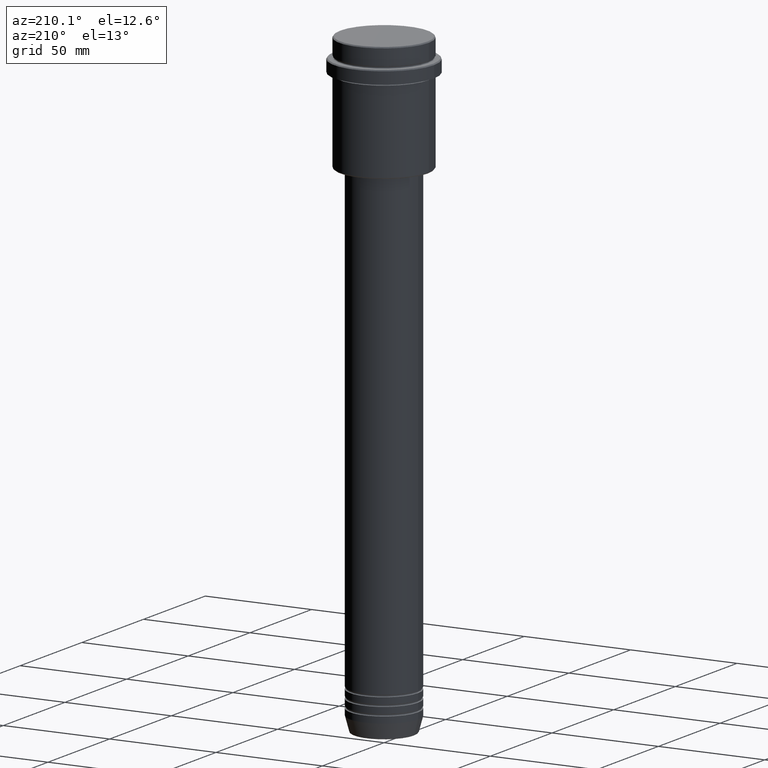
[diagram: clean part render]
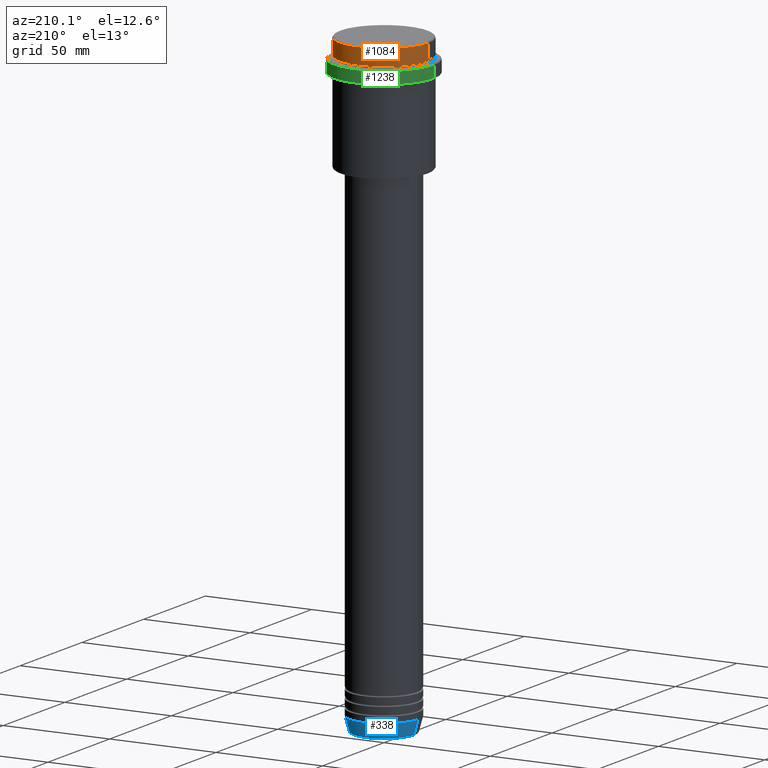
[diagram: same view with three faces highlighted in distinct colors, each labeled with its STEP entity id]
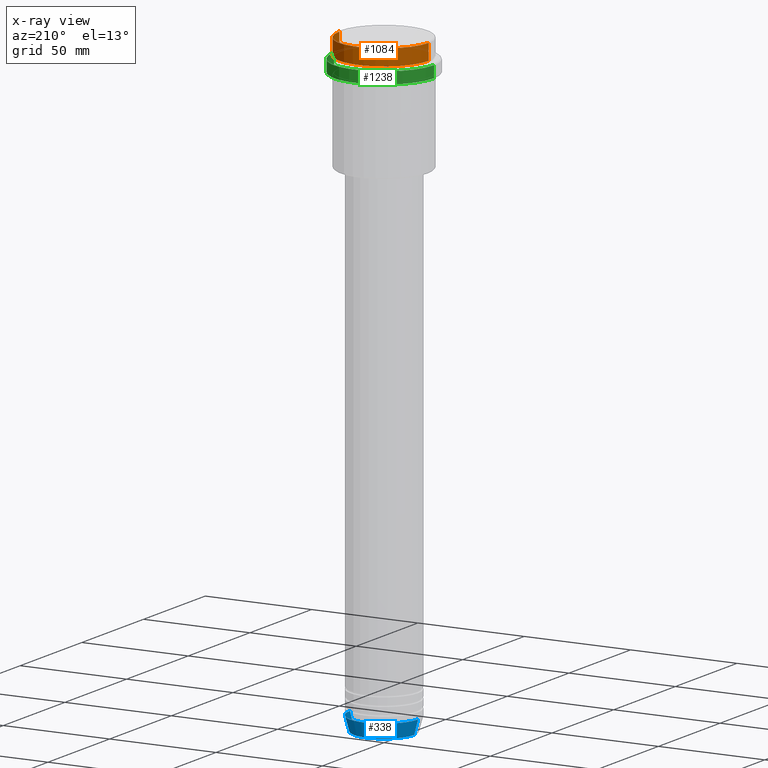
[diagram: x-ray of the same camera — body ghosted, the three highlighted faces saturated]
A machine part, auxiliary view with three faces highlighted in distinct colors.
The next image is the same camera in x-ray (body ghosted, the three faces saturated) — at least one of them is partly hidden behind the body in this view.
Their STEP definitions:

[orange] entity #1084 — the highlighted cylindrical surface (partial cylindrical patch) has radius 21 mm, axis along (-0, -0, 1).
#62 = EDGE_CURVE ( 'NONE', #1328, #158, #279, .T. ) ;
#65 = FACE_OUTER_BOUND ( 'NONE', #515, .T. ) ;
#149 = DIRECTION ( 'NONE',  ( 1.000000000000000000, 0.000000000000000000, 0.000000000000000000 ) ) ;
#153 = ORIENTED_EDGE ( 'NONE', *, *, #211, .F. ) ;
#158 = VERTEX_POINT ( 'NONE', #939 ) ;
#211 = EDGE_CURVE ( 'NONE', #996, #158, #379, .T. ) ;
#248 = DIRECTION ( 'NONE',  ( -0.000000000000000000, -0.000000000000000000, 1.000000000000000000 ) ) ;
#253 = DIRECTION ( 'NONE',  ( 0.000000000000000000, 0.000000000000000000, -1.000000000000000000 ) ) ;
#256 = AXIS2_PLACEMENT_3D ( 'NONE', #757, #875, #1298 ) ;
#272 = DIRECTION ( 'NONE',  ( -0.000000000000000000, -0.000000000000000000, 1.000000000000000000 ) ) ;
#279 = CIRCLE ( 'NONE', #459, 20.99999999999999645 ) ;
#288 = DIRECTION ( 'NONE',  ( 1.000000000000000000, 0.000000000000000000, 0.000000000000000000 ) ) ;
#312 = ORIENTED_EDGE ( 'NONE', *, *, #594, .T. ) ;
#374 = EDGE_CURVE ( 'NONE', #882, #1328, #811, .T. ) ;
#379 = LINE ( 'NONE', #816, #615 ) ;
#459 = AXIS2_PLACEMENT_3D ( 'NONE', #936, #253, #149 ) ;
#510 = CYLINDRICAL_SURFACE ( 'NONE', #1179, 20.99999999999999645 ) ;
#515 = EDGE_LOOP ( 'NONE', ( #312, #612, #700, #153 ) ) ;
#594 = EDGE_CURVE ( 'NONE', #996, #882, #617, .T. ) ;
#612 = ORIENTED_EDGE ( 'NONE', *, *, #374, .T. ) ;
#615 = VECTOR ( 'NONE', #272, 1000.000000000000000 ) ;
#616 = CARTESIAN_POINT ( 'NONE',  ( -20.99999999999999645, 2.571758278209441267E-15, -7.999999999999998224 ) ) ;
#617 = CIRCLE ( 'NONE', #256, 20.99999999999999645 ) ;
#700 = ORIENTED_EDGE ( 'NONE', *, *, #62, .T. ) ;
#757 = CARTESIAN_POINT ( 'NONE',  ( 0.000000000000000000, 0.000000000000000000, -7.999999999999998224 ) ) ;
#791 = CARTESIAN_POINT ( 'NONE',  ( -20.99999999999999645, 2.571758278209441267E-15, 0.000000000000000000 ) ) ;
#811 = LINE ( 'NONE', #791, #869 ) ;
#816 = CARTESIAN_POINT ( 'NONE',  ( 20.99999999999999645, 0.000000000000000000, 0.000000000000000000 ) ) ;
#869 = VECTOR ( 'NONE', #248, 1000.000000000000000 ) ;
#875 = DIRECTION ( 'NONE',  ( -0.000000000000000000, -0.000000000000000000, 1.000000000000000000 ) ) ;
#882 = VERTEX_POINT ( 'NONE', #616 ) ;
#927 = DIRECTION ( 'NONE',  ( -0.000000000000000000, -0.000000000000000000, 1.000000000000000000 ) ) ;
#936 = CARTESIAN_POINT ( 'NONE',  ( 0.000000000000000000, 0.000000000000000000, -0.5000000000000905942 ) ) ;
#939 = CARTESIAN_POINT ( 'NONE',  ( 20.99999999999999645, 0.000000000000000000, -0.5000000000000905942 ) ) ;
#973 = CARTESIAN_POINT ( 'NONE',  ( 20.99999999999999645, 0.000000000000000000, -7.999999999999998224 ) ) ;
#996 = VERTEX_POINT ( 'NONE', #973 ) ;
#1043 = CARTESIAN_POINT ( 'NONE',  ( -20.99999999999999645, 2.571758278209441267E-15, -0.5000000000000905942 ) ) ;
#1084 = ADVANCED_FACE ( 'NONE', ( #65 ), #510, .T. ) ;
#1133 = CARTESIAN_POINT ( 'NONE',  ( 0.000000000000000000, 0.000000000000000000, 0.000000000000000000 ) ) ;
#1179 = AXIS2_PLACEMENT_3D ( 'NONE', #1133, #927, #288 ) ;
#1298 = DIRECTION ( 'NONE',  ( 1.000000000000000000, 0.000000000000000000, 0.000000000000000000 ) ) ;
#1328 = VERTEX_POINT ( 'NONE', #1043 ) ;

[blue] entity #338 — the highlighted conical surface has half-angle 15 deg.
#7 = EDGE_CURVE ( 'NONE', #904, #978, #1002, .T. ) ;
#57 = DIRECTION ( 'NONE',  ( -0.2588190451025213501, 3.169619151431772337E-17, 0.9659258262890680902 ) ) ;
#80 = CARTESIAN_POINT ( 'NONE',  ( -16.00000000000000000, 1.959434878635765131E-15, -283.0000000000000000 ) ) ;
#100 = DIRECTION ( 'NONE',  ( -0.000000000000000000, -0.000000000000000000, 1.000000000000000000 ) ) ;
#140 = CIRCLE ( 'NONE', #1217, 16.00000000000000000 ) ;
#170 = ORIENTED_EDGE ( 'NONE', *, *, #1163, .T. ) ;
#197 = CARTESIAN_POINT ( 'NONE',  ( 14.22365507213718772, 0.000000000000000000, -289.6294095225512137 ) ) ;
#208 = DIRECTION ( 'NONE',  ( -0.000000000000000000, -0.000000000000000000, 1.000000000000000000 ) ) ;
#212 = CARTESIAN_POINT ( 'NONE',  ( 0.000000000000000000, 0.000000000000000000, -283.0000000000000000 ) ) ;
#225 = CARTESIAN_POINT ( 'NONE',  ( 0.000000000000000000, 0.000000000000000000, -289.6294095225512137 ) ) ;
#263 = CARTESIAN_POINT ( 'NONE',  ( -16.00000000000000000, 1.959434878635765131E-15, -283.0000000000000000 ) ) ;
#303 = AXIS2_PLACEMENT_3D ( 'NONE', #975, #425, #864 ) ;
#337 = CARTESIAN_POINT ( 'NONE',  ( -14.22365507213718772, 1.850665122131323337E-15, -289.6294095225512137 ) ) ;
#338 = ADVANCED_FACE ( 'NONE', ( #635 ), #917, .T. ) ;
#390 = VECTOR ( 'NONE', #57, 1000.000000000000000 ) ;
#425 = DIRECTION ( 'NONE',  ( -0.000000000000000000, -0.000000000000000000, 1.000000000000000000 ) ) ;
#462 = ORIENTED_EDGE ( 'NONE', *, *, #577, .F. ) ;
#577 = EDGE_CURVE ( 'NONE', #904, #698, #1063, .T. ) ;
#598 = LINE ( 'NONE', #263, #390 ) ;
#600 = VECTOR ( 'NONE', #953, 1000.000000000000000 ) ;
#635 = FACE_OUTER_BOUND ( 'NONE', #809, .T. ) ;
#657 = DIRECTION ( 'NONE',  ( 1.000000000000000000, 0.000000000000000000, 0.000000000000000000 ) ) ;
#698 = VERTEX_POINT ( 'NONE', #842 ) ;
#717 = CARTESIAN_POINT ( 'NONE',  ( 16.00000000000000000, 0.000000000000000000, -283.0000000000000000 ) ) ;
#809 = EDGE_LOOP ( 'NONE', ( #843, #170, #1013, #462 ) ) ;
#842 = CARTESIAN_POINT ( 'NONE',  ( 16.00000000000000000, 0.000000000000000000, -283.0000000000000000 ) ) ;
#843 = ORIENTED_EDGE ( 'NONE', *, *, #7, .T. ) ;
#864 = DIRECTION ( 'NONE',  ( 1.000000000000000000, 0.000000000000000000, 0.000000000000000000 ) ) ;
#904 = VERTEX_POINT ( 'NONE', #197 ) ;
#917 = CONICAL_SURFACE ( 'NONE', #303, 16.00000000000000000, 0.2617993877991500740 ) ;
#953 = DIRECTION ( 'NONE',  ( 0.2588190451025213501, 0.000000000000000000, 0.9659258262890680902 ) ) ;
#956 = EDGE_CURVE ( 'NONE', #698, #1271, #140, .T. ) ;
#975 = CARTESIAN_POINT ( 'NONE',  ( 0.000000000000000000, 0.000000000000000000, -283.0000000000000000 ) ) ;
#978 = VERTEX_POINT ( 'NONE', #337 ) ;
#1002 = CIRCLE ( 'NONE', #1212, 14.22365507213718772 ) ;
#1013 = ORIENTED_EDGE ( 'NONE', *, *, #956, .F. ) ;
#1063 = LINE ( 'NONE', #717, #600 ) ;
#1070 = DIRECTION ( 'NONE',  ( 1.000000000000000000, 0.000000000000000000, 0.000000000000000000 ) ) ;
#1163 = EDGE_CURVE ( 'NONE', #978, #1271, #598, .T. ) ;
#1212 = AXIS2_PLACEMENT_3D ( 'NONE', #225, #208, #1070 ) ;
#1217 = AXIS2_PLACEMENT_3D ( 'NONE', #212, #100, #657 ) ;
#1271 = VERTEX_POINT ( 'NONE', #80 ) ;

[green] entity #1238 — the highlighted cylindrical surface (partial cylindrical patch) has radius 23.5 mm, axis along (-0, -0, 1).
#41 = DIRECTION ( 'NONE',  ( -0.000000000000000000, -0.000000000000000000, 1.000000000000000000 ) ) ;
#87 = DIRECTION ( 'NONE',  ( 1.000000000000000000, 0.000000000000000000, 0.000000000000000000 ) ) ;
#257 = LINE ( 'NONE', #1224, #727 ) ;
#336 = EDGE_LOOP ( 'NONE', ( #948, #1401, #1260, #794 ) ) ;
#389 = AXIS2_PLACEMENT_3D ( 'NONE', #766, #578, #1206 ) ;
#399 = DIRECTION ( 'NONE',  ( -0.000000000000000000, -0.000000000000000000, 1.000000000000000000 ) ) ;
#506 = CARTESIAN_POINT ( 'NONE',  ( 23.50000000000000355, 0.000000000000000000, -15.00000000000000178 ) ) ;
#529 = CYLINDRICAL_SURFACE ( 'NONE', #1009, 23.50000000000000000 ) ;
#551 = CARTESIAN_POINT ( 'NONE',  ( 0.000000000000000000, 0.000000000000000000, -15.00000000000000178 ) ) ;
#578 = DIRECTION ( 'NONE',  ( 0.000000000000000000, 0.000000000000000000, -1.000000000000000000 ) ) ;
#621 = CARTESIAN_POINT ( 'NONE',  ( -23.50000000000000711, 2.877919977996281109E-15, -15.00000000000000178 ) ) ;
#627 = EDGE_CURVE ( 'NONE', #1218, #697, #257, .T. ) ;
#696 = EDGE_CURVE ( 'NONE', #867, #1218, #1243, .T. ) ;
#697 = VERTEX_POINT ( 'NONE', #1127 ) ;
#727 = VECTOR ( 'NONE', #41, 1000.000000000000000 ) ;
#751 = EDGE_CURVE ( 'NONE', #697, #1052, #1007, .T. ) ;
#766 = CARTESIAN_POINT ( 'NONE',  ( 0.000000000000000000, 0.000000000000000000, -9.500000000000111910 ) ) ;
#794 = ORIENTED_EDGE ( 'NONE', *, *, #1139, .F. ) ;
#813 = DIRECTION ( 'NONE',  ( -0.000000000000000000, -0.000000000000000000, 1.000000000000000000 ) ) ;
#827 = AXIS2_PLACEMENT_3D ( 'NONE', #551, #1314, #1344 ) ;
#867 = VERTEX_POINT ( 'NONE', #506 ) ;
#948 = ORIENTED_EDGE ( 'NONE', *, *, #696, .T. ) ;
#1007 = CIRCLE ( 'NONE', #389, 23.50000000000000000 ) ;
#1009 = AXIS2_PLACEMENT_3D ( 'NONE', #1151, #399, #87 ) ;
#1052 = VERTEX_POINT ( 'NONE', #1335 ) ;
#1056 = FACE_OUTER_BOUND ( 'NONE', #336, .T. ) ;
#1127 = CARTESIAN_POINT ( 'NONE',  ( -23.50000000000000000, 2.877919977996280320E-15, -9.500000000000111910 ) ) ;
#1139 = EDGE_CURVE ( 'NONE', #867, #1052, #1229, .T. ) ;
#1151 = CARTESIAN_POINT ( 'NONE',  ( 0.000000000000000000, 0.000000000000000000, 0.000000000000000000 ) ) ;
#1206 = DIRECTION ( 'NONE',  ( 1.000000000000000000, 0.000000000000000000, 0.000000000000000000 ) ) ;
#1218 = VERTEX_POINT ( 'NONE', #621 ) ;
#1224 = CARTESIAN_POINT ( 'NONE',  ( -23.50000000000000000, 2.877919977996280320E-15, 0.000000000000000000 ) ) ;
#1229 = LINE ( 'NONE', #1361, #1248 ) ;
#1238 = ADVANCED_FACE ( 'NONE', ( #1056 ), #529, .T. ) ;
#1243 = CIRCLE ( 'NONE', #827, 23.50000000000000355 ) ;
#1248 = VECTOR ( 'NONE', #813, 1000.000000000000000 ) ;
#1260 = ORIENTED_EDGE ( 'NONE', *, *, #751, .T. ) ;
#1314 = DIRECTION ( 'NONE',  ( -0.000000000000000000, -0.000000000000000000, 1.000000000000000000 ) ) ;
#1335 = CARTESIAN_POINT ( 'NONE',  ( 23.50000000000000000, 0.000000000000000000, -9.500000000000111910 ) ) ;
#1344 = DIRECTION ( 'NONE',  ( 1.000000000000000000, 0.000000000000000000, 0.000000000000000000 ) ) ;
#1361 = CARTESIAN_POINT ( 'NONE',  ( 23.50000000000000000, 0.000000000000000000, 0.000000000000000000 ) ) ;
#1401 = ORIENTED_EDGE ( 'NONE', *, *, #627, .T. ) ;